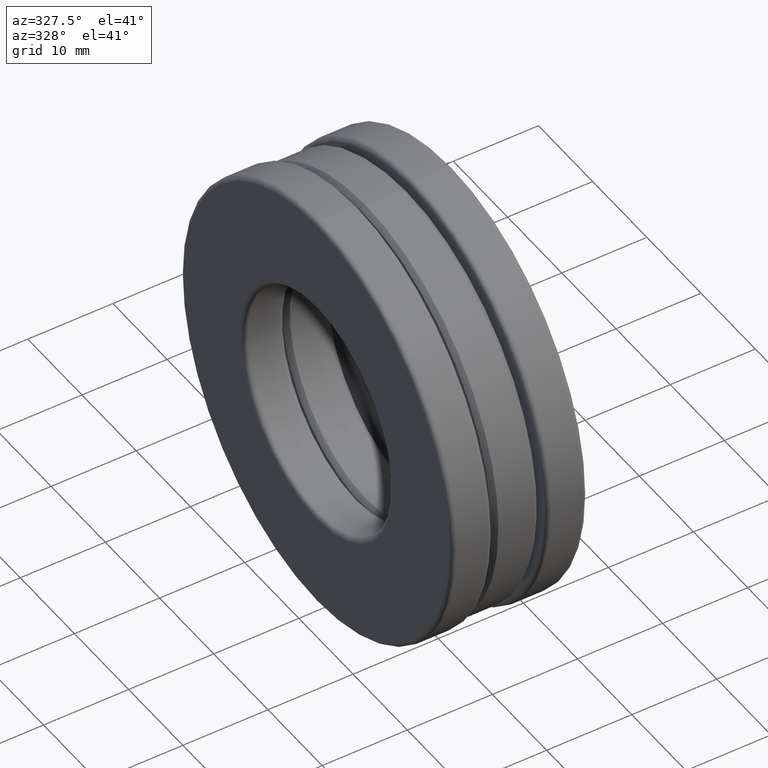
[diagram: clean part render]
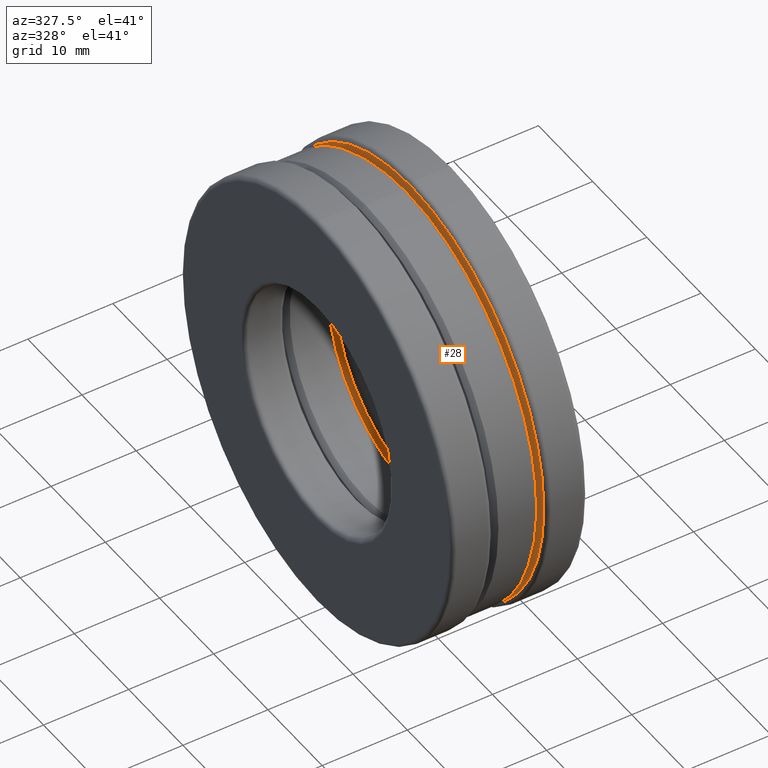
[diagram: same view with one face highlighted and labeled with its STEP entity id]
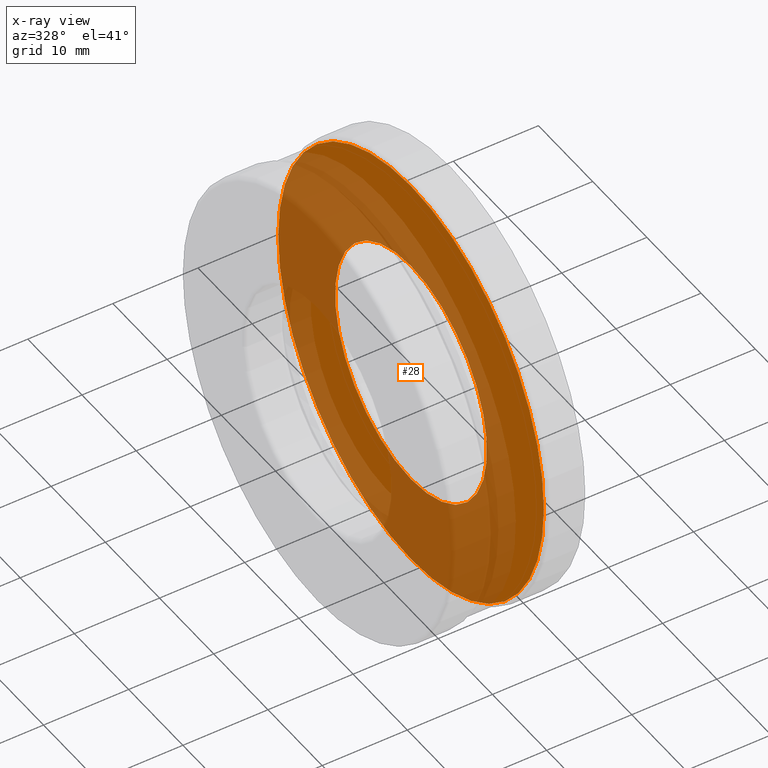
[diagram: x-ray of the same camera — body ghosted, the highlighted face saturated]
A machine part, auxiliary view. The second image highlights one B-rep face of the part: STEP entity #28.
The next image is the same camera in x-ray: the body ghosted, the highlighted face saturated — about 63% of this face is hidden behind the body in this view.
In plain terms, the highlighted planar face has unit normal (1, 0, 0).
Its self-contained STEP definition (entity closure, byte-faithful):
#22 = VERTEX_POINT ( 'NONE', #1004 ) ;
#27 = CIRCLE ( 'NONE', #350, 0.9643749999999999800 ) ;
#28 = ADVANCED_FACE ( 'NONE', ( #1121, #1316 ), #996, .F. ) ;
#72 = VERTEX_POINT ( 'NONE', #1255 ) ;
#118 = EDGE_LOOP ( 'NONE', ( #1055 ) ) ;
#169 = AXIS2_PLACEMENT_3D ( 'NONE', #1287, #1400, #1184 ) ;
#190 = DIRECTION ( 'NONE',  ( 0.0000000000000000000, 0.0000000000000000000, 1.000000000000000000 ) ) ;
#350 = AXIS2_PLACEMENT_3D ( 'NONE', #1079, #961, #190 ) ;
#407 = EDGE_CURVE ( 'NONE', #72, #72, #27, .T. ) ;
#416 = AXIS2_PLACEMENT_3D ( 'NONE', #1468, #891, #1010 ) ;
#470 = EDGE_LOOP ( 'NONE', ( #1018 ) ) ;
#839 = EDGE_CURVE ( 'NONE', #22, #22, #985, .T. ) ;
#891 = DIRECTION ( 'NONE',  ( 1.000000000000000000, 0.0000000000000000000, 0.0000000000000000000 ) ) ;
#961 = DIRECTION ( 'NONE',  ( -1.000000000000000000, -0.0000000000000000000, -0.0000000000000000000 ) ) ;
#985 = CIRCLE ( 'NONE', #169, 0.5512500000000000200 ) ;
#996 = PLANE ( 'NONE',  #416 ) ;
#1004 = CARTESIAN_POINT ( 'NONE',  ( 0.1250000000000000000, 0.0000000000000000000, 0.5512500000000000200 ) ) ;
#1010 = DIRECTION ( 'NONE',  ( 0.0000000000000000000, 0.0000000000000000000, -1.000000000000000000 ) ) ;
#1018 = ORIENTED_EDGE ( 'NONE', *, *, #839, .F. ) ;
#1055 = ORIENTED_EDGE ( 'NONE', *, *, #407, .T. ) ;
#1079 = CARTESIAN_POINT ( 'NONE',  ( 0.1250000000000000000, 0.0000000000000000000, 0.0000000000000000000 ) ) ;
#1121 = FACE_BOUND ( 'NONE', #470, .T. ) ;
#1184 = DIRECTION ( 'NONE',  ( 0.0000000000000000000, 0.0000000000000000000, 1.000000000000000000 ) ) ;
#1255 = CARTESIAN_POINT ( 'NONE',  ( 0.1250000000000000000, 0.0000000000000000000, 0.9643749999999999800 ) ) ;
#1287 = CARTESIAN_POINT ( 'NONE',  ( 0.1250000000000000000, 0.0000000000000000000, 0.0000000000000000000 ) ) ;
#1316 = FACE_OUTER_BOUND ( 'NONE', #118, .T. ) ;
#1400 = DIRECTION ( 'NONE',  ( -1.000000000000000000, -0.0000000000000000000, -0.0000000000000000000 ) ) ;
#1468 = CARTESIAN_POINT ( 'NONE',  ( 0.1250000000000000000, 0.0000000000000000000, 0.0000000000000000000 ) ) ;